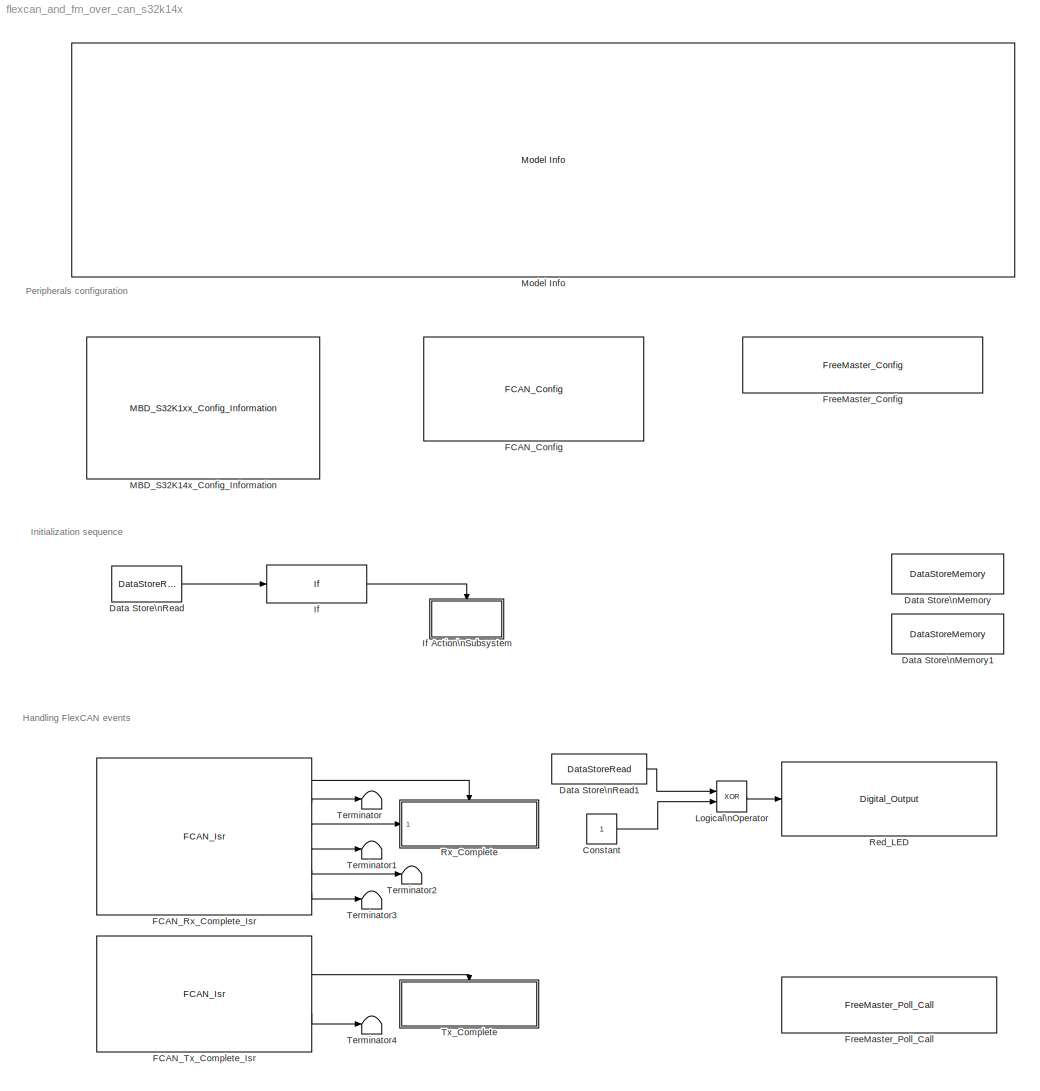
MODEL flexcan_and_fm_over_can_s32k14x
KIND model
CONFIG InitFcn = mbd_s32k_consistency_checks(bdroot(gcs));
BLOCK [Constant] Constant
  OutDataTypeStr = boolean
  SID = 516
BLOCK [DataStoreMemory] Data Store\nMemory
  DataStoreName = CAN_receive
  OutDataTypeStr = uint8
  ReadBeforeWriteMsg = warning
  SID = 500
  ShowAdditionalParam = off
  WriteAfterReadMsg = warning
  WriteAfterWriteMsg = warning
BLOCK [DataStoreMemory] Data Store\nMemory1
  DataStoreName = CAN_send
  OutDataTypeStr = boolean
  ReadBeforeWriteMsg = warning
  SID = 501
  ShowAdditionalParam = off
  WriteAfterReadMsg = warning
  WriteAfterWriteMsg = warning
BLOCK [DataStoreRead] Data Store\nRead
  DataStoreName = CAN_send
  Ports = [0, 1]
  SID = 504
BLOCK [DataStoreRead] Data Store\nRead1
  DataStoreName = CAN_send
  Ports = [0, 1]
  SID = 513
BLOCK [Reference] FCAN_Config  REF=mbd_s32k1xx_ec_toolbox/Communication Blocks/CAN Blocks/FCAN_Config
  Ports = []
  Priority = 1
  SID = 2
  SourceBlock = mbd_s32k1xx_ec_toolbox/Communication Blocks/CAN Blocks/FCAN_Config
  SourceType = fcan_s32k_config
  bitrate = 500
  bitrate_adv_opts = off
  can_cbt_presdiv = 9
  can_cbt_propseg = 6
  can_cbt_pseg1 = 3
  can_cbt_pseg2 = 3
  can_cbt_rjw = 0
  can_clk_src = Peripheral clock
  can_fd_enable = off
  can_fifo_id_filter = {'0x0', '0x0', '0x0', '0x0', '0x0', '0x0', '0x0', '0x0'}
  can_fifo_id_filter_extended = off
  can_fifo_id_filter_remote = off
  can_fifo_id_format = A
  can_idfilter_extendedid = off
  can_idfilter_id1 = 0
  can_idfilter_id2 = 0
  can_idfilter_remoteframe = off
  can_idfilter_type = Match exact
  can_instance = 1
  can_match_timeout = 1
  can_max_num_mb = 16
  can_mode = Normal mode
  can_multiple_matches_en = off
  can_num_id_filters = 8
  can_num_matches = 1
  can_payload = 8
  can_payloadfilter_dlchigh = 0
  can_payloadfilter_dlclow = 0
  can_payloadfilter_enable = on
  can_payloadfilter_payload1_b0 = 0
  can_payloadfilter_payload1_b1 = 0
  can_payloadfilter_payload1_b2 = 0
  can_payloadfilter_payload1_b3 = 0
  can_payloadfilter_payload1_b4 = 0
  can_payloadfilter_payload1_b5 = 0
  can_payloadfilter_payload1_b6 = 0
  can_payloadfilter_payload1_b7 = 0
  can_payloadfilter_payload2_b0 = 0
  can_payloadfilter_payload2_b1 = 0
  can_payloadfilter_payload2_b2 = 0
  can_payloadfilter_payload2_b3 = 0
  can_payloadfilter_payload2_b4 = 0
  can_payloadfilter_payload2_b5 = 0
  can_payloadfilter_payload2_b6 = 0
  can_payloadfilter_payload2_b7 = 0
  can_payloadfilter_type = Match exact
  can_pn_enable = off
  can_presdiv = 7
  can_propseg = 7
  can_pseg1 = 6
  can_pseg2 = 3
  can_rjw = 3
  can_rx = PTA12: [CAN1_RX | CAN Rx channel]
  can_rxfifo_enable = off
  can_timeout_en = off
  can_tx = PTA13: [CAN1_TX | CAN Tx Channel]
  can_wakeup_match = off
  can_wakeup_timeout = off
  show_adv_opts = on
BLOCK [Reference] FCAN_Rx_Complete_Isr  REF=mbd_s32k1xx_ec_toolbox/Communication Blocks/CAN Blocks/FCAN_Isr
  Ports = [0, 6]
  SID = 86
  SourceBlock = mbd_s32k1xx_ec_toolbox/Communication Blocks/CAN Blocks/FCAN_Isr
  SourceType = fcan_s32k_isr
  can_event = Rx Complete
  can_instance = 1
BLOCK [Reference] FCAN_Tx_Complete_Isr  REF=mbd_s32k1xx_ec_toolbox/Communication Blocks/CAN Blocks/FCAN_Isr
  Ports = [0, 2]
  SID = 463
  SourceBlock = mbd_s32k1xx_ec_toolbox/Communication Blocks/CAN Blocks/FCAN_Isr
  SourceType = fcan_s32k_isr
  can_event = Tx Complete
  can_instance = 1
BLOCK [Reference] FreeMaster_Config  REF=mbd_s32k1xx_ec_toolbox/Utility Blocks/FreeMaster_Config
  Ports = []
  SID = 497
  SourceBlock = mbd_s32k1xx_ec_toolbox/Utility Blocks/FreeMaster_Config
  SourceType = fm_s32k_config
  baudrate = 1M
  comm_buffer_size = 255
  comm_buffer_size_auto = on
  comm_rqueue_size = 32
  comm_rqueue_size_default = on
  interface = CAN0
  isr_prio = 0
  max_rec_vars = 8
  max_scope_vars = 8
  mode = Short Interrupt
  rec_buff_size = 512
  rec_timebase = 10
  rec_timebase_unit = milliseconds
  rxd = PTE4: [CAN0_RX | CAN Rx channel]
  show_adv_opts = on
  txd = PTE5: [CAN0_TX | CAN Tx Channel]
  use_recorder = on
  use_scope = on
BLOCK [Reference] FreeMaster_Poll_Call  REF=mbd_s32k1xx_ec_toolbox/Utility Blocks/FreeMaster_Poll_Call
  Ports = []
  SID = 505
  SourceBlock = mbd_s32k1xx_ec_toolbox/Utility Blocks/FreeMaster_Poll_Call
  SourceType = fm_s32k_poll_call
BLOCK [If] If
  IfExpression = u1 == 1
  Ports = [1, 1]
  SID = 144
  ShowElse = off
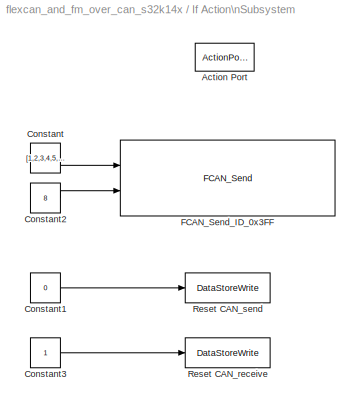
BLOCK [SubSystem] If Action\nSubsystem
  Ports = [0, 0, 0, 0, 0, 0, 0, 1]
  RequestExecContextInheritance = off
  SID = 145
  TreatAsAtomicUnit = on
  Variant = off
BLOCK [ActionPort] If Action\nSubsystem/Action Port
  ActionType = then
  SID = 147
BLOCK [Constant] If Action\nSubsystem/Constant
  OutDataTypeStr = uint8
  SID = 518
  Value = [1,2,3,4,5,6,7,8]
BLOCK [Constant] If Action\nSubsystem/Constant1
  OutDataTypeStr = boolean
  SID = 525
  Value = 0
BLOCK [Constant] If Action\nSubsystem/Constant2
  OutDataTypeStr = uint8
  SID = 519
  Value = 8
BLOCK [Constant] If Action\nSubsystem/Constant3
  OutDataTypeStr = uint8
  SID = 527
BLOCK [Reference] If Action\nSubsystem/FCAN_Send_ID_0x3FF  REF=mbd_s32k1xx_ec_toolbox/Communication Blocks/CAN Blocks/FCAN_Send
  Ports = [2]
  Priority = 2
  SID = 212
  SourceBlock = mbd_s32k1xx_ec_toolbox/Communication Blocks/CAN Blocks/FCAN_Send
  SourceType = fcan_s32k_send
  can_enable_brs = off
  can_extended_id = off
  can_fd_enable = off
  can_fd_padding = 0
  can_id = 3FF
  can_instance = 1
  can_is_remote = off
  can_mb_idx = 15
  can_mode = Non-blocking
  can_timeout_ms = 0
  show_adv_opts = off
BLOCK [DataStoreWrite] If Action\nSubsystem/Reset CAN_receive
  DataStoreName = CAN_receive
  Ports = [1]
  SID = 528
BLOCK [DataStoreWrite] If Action\nSubsystem/Reset CAN_send
  DataStoreName = CAN_send
  Ports = [1]
  SID = 526
BLOCK [Logic] Logical\nOperator
  AllPortsSameDT = off
  Operator = XOR
  OutDataTypeStr = boolean
  Ports = [2, 1]
  SID = 515
BLOCK [Reference] MBD_S32K14x_Config_Information  REF=mbd_s32k1xx_ec_toolbox/MBD_S32K1xx_Config_Information
  ADC_PcrCheckEnDis = on
  AMMCLIB_PcrCheckEnDis = on
  CMP_PcrCheckEnDis = on
  CSEc_PcrCheckEnDis = on
  ConfigParams_PcrCheckEnDis = on
  FM_PcrCheckEnDis = on
  FTM_Dual_Edge_Inputs_PcrCheckEnDis = on
  FTM_Hall_Sensor_Inputs_PcrCheckEnDis = on
  FTM_Input_Edge_Inputs_PcrCheckEnDis = on
  FTM_PWM_PcrCheckEnDis = on
  FTM_Quadrature_Inputs_PcrCheckEnDis = on
  FlexCAN_PcrCheckEnDis = on
  FlexIO_PcrCheckEnDis = on
  GPIO_InputPcrCheckEnDis = on
  GPIO_OutputPcrCheckEnDis = on
  LIN_PcrCheckEnDis = on
  LPI2C_PcrCheckEnDis = on
  LPSPI_PcrCheckEnDis = on
  LPTMR_PcrCheckEnDis = on
  LPUART_PcrCheckEnDis = on
  ModelRef_PcrCheckEnDis = on
  PDB0_PcrCheckEnDis = on
  PIT_PcrCheckEnDis = on
  Ports = []
  Profile_PcrCheckEnDis = on
  RTC_PcrCheckEnDis = on
  SBC_PcrCheckEnDis = on
  SID = 496
  SourceBlock = mbd_s32k1xx_ec_toolbox/MBD_S32K1xx_Config_Information
  SourceType = MBDTBX_EC_S32K
  WDOG_PcrCheckEnDis = on
  config_params = []
  disp_str = Target : S32K144-64KB_SRAM\nPackage : 100-pin\nSystem clock : 80 MHz\nXTAL clock : External 8 MHz\nCompiler : IAR\nTarget Type : FLASH\nDownload Code after build : off\nStep Tick Interrupt Priority : 15
  ds_import_enable = on
  eDMA_PcrCheckEnDis = on
  gcc_target_assemble_opts = -mcpu=cortex-m4 -mthumb -mfloat-abi=hard -mfpu=fpv4-sp-d16 -g
  gcc_target_compile_opts = -mcpu=cortex-m4 -mthumb -mfloat-abi=hard -mfpu=fpv4-sp-d16 -O1 -g -gstrict-dwarf
  gcc_target_default_lcf = on
  gcc_target_link_opts = -mcpu=cortex-m4 -mthumb -mfloat-abi=hard -mfpu=fpv4-sp-d16
  gcc_target_user_lcf = S32K144_48_flash.ld
  ghs_target_assemble_opts = -cpu=cortexm4f -fpu=vfpv4_d16
  ghs_target_compile_opts = -cpu=cortexm4f -thumb -DARM_MATH_CM4 -fpu=vfpv4_d16 -fsingle -Ogeneral -Wundef -Wimplicit-int -Wshadow -Wtrigraphs --no_commons --gnu_asm -gnu99 -gdwarf-2 -G
  ghs_target_default_lcf = on
  ghs_target_link_opts = -cpu=cortexm4f -thumb -fpu=vfpv4_d16
  ghs_target_user_lcf = S32K144_48_flash.ld
  iar_target_assemble_opts = --cpu Cortex-M4F --thumb --fpu VFPv4_sp
  iar_target_compile_opts = --cpu=Cortex-M4F --thumb --fpu=VFPv4_sp -Ol -e --debug --dlib_config normal
  iar_target_default_lcf = on
  iar_target_link_opts = --no_exceptions --vfe --inline
  iar_target_user_lcf = S32K144_48_flash.icf
  mbdt_ver = 0
  mcu_steptick_prio = 15
  mcu_steptick_timer = LPIT Channel 0
  mcu_system_clock_freq = 80
  mcu_target_name = S32K144
  mcu_target_package = 100-LQFP
  mcu_target_sram_size = 48KB
  mcu_xtal_freq = External 8
  pil_download_enable = off
  pil_download_rate = 57600
  pil_opensda_drive = Custom
  pil_opensda_drive_custom = D
  pil_uart_instance = 0
  pil_uart_rx = PTA2: [LPUART0_RX | Receive]
  pil_uart_tx = PTA3: [LPUART0_TX | Transmit]
  rbl_com_port = Custom
  rbl_com_port_custom = COM1
  rbl_download_enable = on
  rbl_download_interface = OpenSDA
  rbl_restart_request = off
  rbl_start_delay = 5000000
  target_compiler = GCC
  target_memory = FLASH
BLOCK [Reference] Model Info  REF=simulink/Model-Wide\nUtilities/Model Info
  DisplayStringWithTags = Model Name: %<ModelName>\n\nDescription: %<Description>
  Frame = on
  HorizontalTextAlignment = Left
  LeftAlignmentValue = 0.02
  MaskDisplayString = Model Name: flexcan_and_fm_over_can_s32k14x\\n\\nDescription: This model tests freemaster over CAN0 interface and use CAN1 interface to communicate \\nwith other device (eg.: S32K118EVB). <path>:<path> on S32k144 EVB\\nMake sure you connect S32K144 through CAN1 interface to S32k118\\n\\n...<+949ch>
  Ports = []
  SID = 74
  SourceBlock = simulink/Model-Wide\nUtilities/Model Info
  SourceProductBaseCode = SL
  SourceProductName = Simulink
  SourceType = CMBlock
BLOCK [Reference] Red_LED  REF=mbd_s32k1xx_ec_toolbox/GPIO Blocks/Digital_Output
  Ports = [1]
  SID = 512
  SourceBlock = mbd_s32k1xx_ec_toolbox/GPIO Blocks/Digital_Output
  SourceType = gpio_s32k_output
  drive_strength = Low
  gpio_pin = PTD15: [PTD15 | Port D I/O]
  init_val = Low
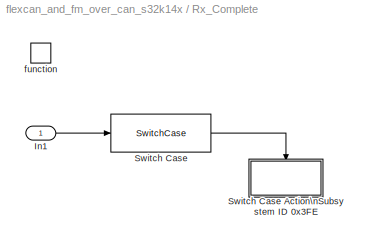
BLOCK [SubSystem] Rx_Complete
  Ports = [1, 0, 0, 1]
  RTWSystemCode = Nonreusable function
  RequestExecContextInheritance = off
  SID = 160
  TreatAsAtomicUnit = on
  Variant = off
BLOCK [Inport] Rx_Complete/In1
  IconDisplay = Port number
  SID = 175
BLOCK [SwitchCase] Rx_Complete/Switch Case
  CaseConditions = {hex2dec('3FE')}
  Ports = [1, 1]
  SID = 90
  ShowDefaultCase = off
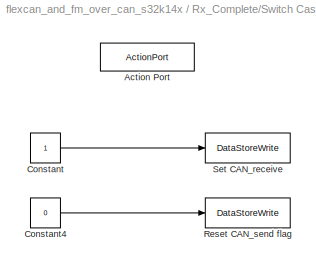
BLOCK [SubSystem] Rx_Complete/Switch Case Action\nSubsystem ID 0x3FE
  Ports = [0, 0, 0, 0, 0, 0, 0, 1]
  RequestExecContextInheritance = off
  SID = 198
  TreatAsAtomicUnit = on
  Variant = off
BLOCK [ActionPort] Rx_Complete/Switch Case Action\nSubsystem ID 0x3FE/Action Port
  ActionType = case
  SID = 199
BLOCK [Constant] Rx_Complete/Switch Case Action\nSubsystem ID 0x3FE/Constant
  OutDataTypeStr = uint8
  SID = 503
BLOCK [Constant] Rx_Complete/Switch Case Action\nSubsystem ID 0x3FE/Constant4
  OutDataTypeStr = boolean
  SID = 523
  Value = 0
BLOCK [DataStoreWrite] Rx_Complete/Switch Case Action\nSubsystem ID 0x3FE/Reset CAN_send flag
  DataStoreName = CAN_send
  Ports = [1]
  SID = 524
BLOCK [DataStoreWrite] Rx_Complete/Switch Case Action\nSubsystem ID 0x3FE/Set CAN_receive
  DataStoreName = CAN_receive
  Ports = [1]
  SID = 502
BLOCK [TriggerPort] Rx_Complete/function
  Ports = []
  SID = 161
  StatesWhenEnabling = held
  TriggerType = function-call
  VariantControl = Variant
BLOCK [Terminator] Terminator
  SID = 475
BLOCK [Terminator] Terminator1
  SID = 474
BLOCK [Terminator] Terminator2
  SID = 473
BLOCK [Terminator] Terminator3
  SID = 480
BLOCK [Terminator] Terminator4
  SID = 476
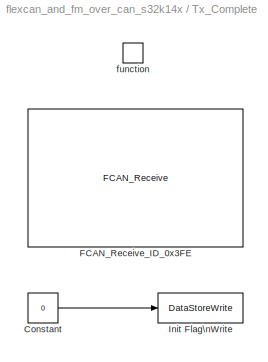
BLOCK [SubSystem] Tx_Complete
  Ports = [0, 0, 0, 1]
  RTWSystemCode = Nonreusable function
  RequestExecContextInheritance = off
  SID = 110
  TreatAsAtomicUnit = on
  Variant = off
BLOCK [Constant] Tx_Complete/Constant
  OutDataTypeStr = boolean
  SID = 462
  Value = 0
BLOCK [Reference] Tx_Complete/FCAN_Receive_ID_0x3FE  REF=mbd_s32k1xx_ec_toolbox/Communication Blocks/CAN Blocks/FCAN_Receive
  Ports = []
  SID = 517
  SourceBlock = mbd_s32k1xx_ec_toolbox/Communication Blocks/CAN Blocks/FCAN_Receive
  SourceType = fcan_s32k_receive
  can_extended_id = off
  can_fd_enable = off
  can_id = 3FE
  can_instance = 1
  can_is_remote = off
  can_mb_idx = 14
  can_mode = Non-blocking
  can_msg_mask = FFFFFFFF
  can_timeout_ms = 0
  can_use_rxfifo = off
  show_adv_opts = off
BLOCK [DataStoreWrite] Tx_Complete/Init Flag\nWrite
  DataStoreName = CAN_send
  Ports = [1]
  SID = 461
BLOCK [TriggerPort] Tx_Complete/function
  Ports = []
  SID = 112
  StatesWhenEnabling = held
  TriggerType = function-call
  VariantControl = Variant
ANNOTATION (root): Handling FlexCAN events
ANNOTATION (root): Initialization sequence
ANNOTATION (root): Peripherals configuration
LINE Constant:1 -> Logical\nOperator:2
LINE Data Store\nRead1:1 -> Logical\nOperator:1
LINE Data Store\nRead:1 -> If:1
LINE FCAN_Rx_Complete_Isr:1 -> Rx_Complete:trigger
LINE FCAN_Rx_Complete_Isr:2 -> Terminator:1
LINE FCAN_Rx_Complete_Isr:3 -> Rx_Complete:1
LINE FCAN_Rx_Complete_Isr:4 -> Terminator1:1
LINE FCAN_Rx_Complete_Isr:5 -> Terminator2:1
LINE FCAN_Rx_Complete_Isr:6 -> Terminator3:1
LINE FCAN_Tx_Complete_Isr:1 -> Tx_Complete:trigger
LINE FCAN_Tx_Complete_Isr:2 -> Terminator4:1
LINE If Action\nSubsystem/Constant1:1 -> If Action\nSubsystem/Reset CAN_send:1
LINE If Action\nSubsystem/Constant2:1 -> If Action\nSubsystem/FCAN_Send_ID_0x3FF:2
LINE If Action\nSubsystem/Constant3:1 -> If Action\nSubsystem/Reset CAN_receive:1
LINE If Action\nSubsystem/Constant:1 -> If Action\nSubsystem/FCAN_Send_ID_0x3FF:1
LINE If:1 -> If Action\nSubsystem:ifaction
LINE Logical\nOperator:1 -> Red_LED:1
LINE Rx_Complete/In1:1 -> Rx_Complete/Switch Case:1
LINE Rx_Complete/Switch Case Action\nSubsystem ID 0x3FE/Constant4:1 -> Rx_Complete/Switch Case Action\nSubsystem ID 0x3FE/Reset CAN_send flag:1
LINE Rx_Complete/Switch Case Action\nSubsystem ID 0x3FE/Constant:1 -> Rx_Complete/Switch Case Action\nSubsystem ID 0x3FE/Set CAN_receive:1
LINE Rx_Complete/Switch Case:1 -> Rx_Complete/Switch Case Action\nSubsystem ID 0x3FE:ifaction
LINE Tx_Complete/Constant:1 -> Tx_Complete/Init Flag\nWrite:1
note: 2 file-system paths scrubbed to <path> (not preserved elsewhere — flat text is the only slx artifact)
